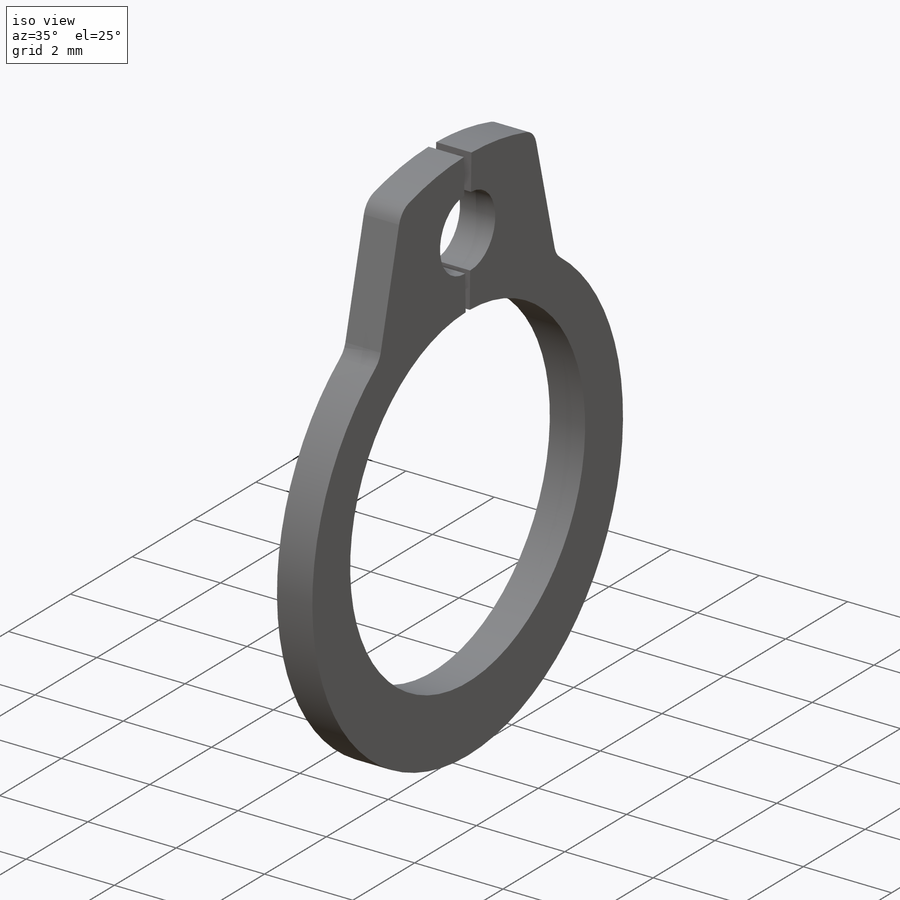
[diagram: iso view]
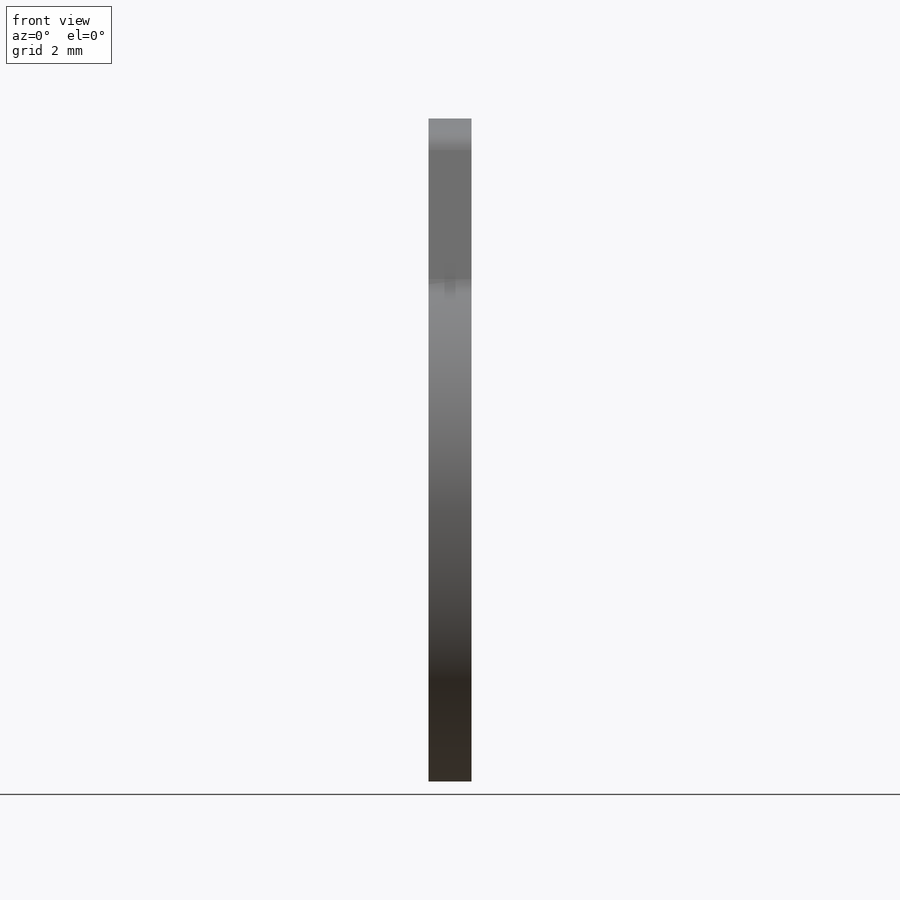
[diagram: front view]
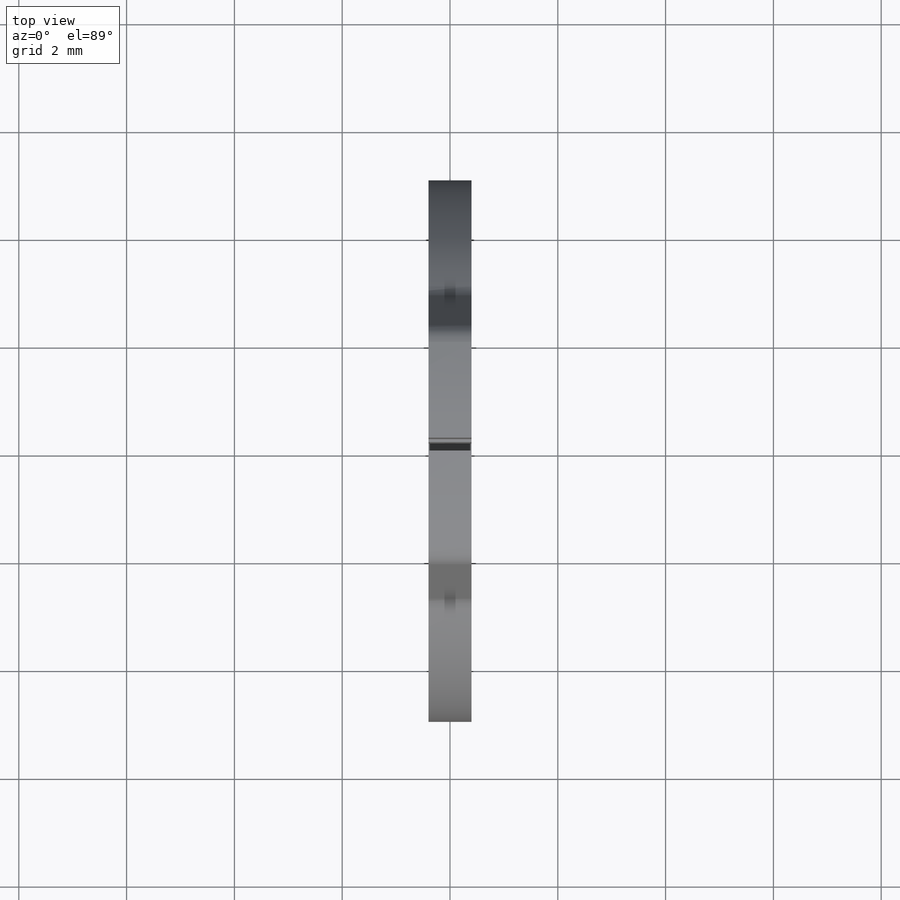
[diagram: top view]
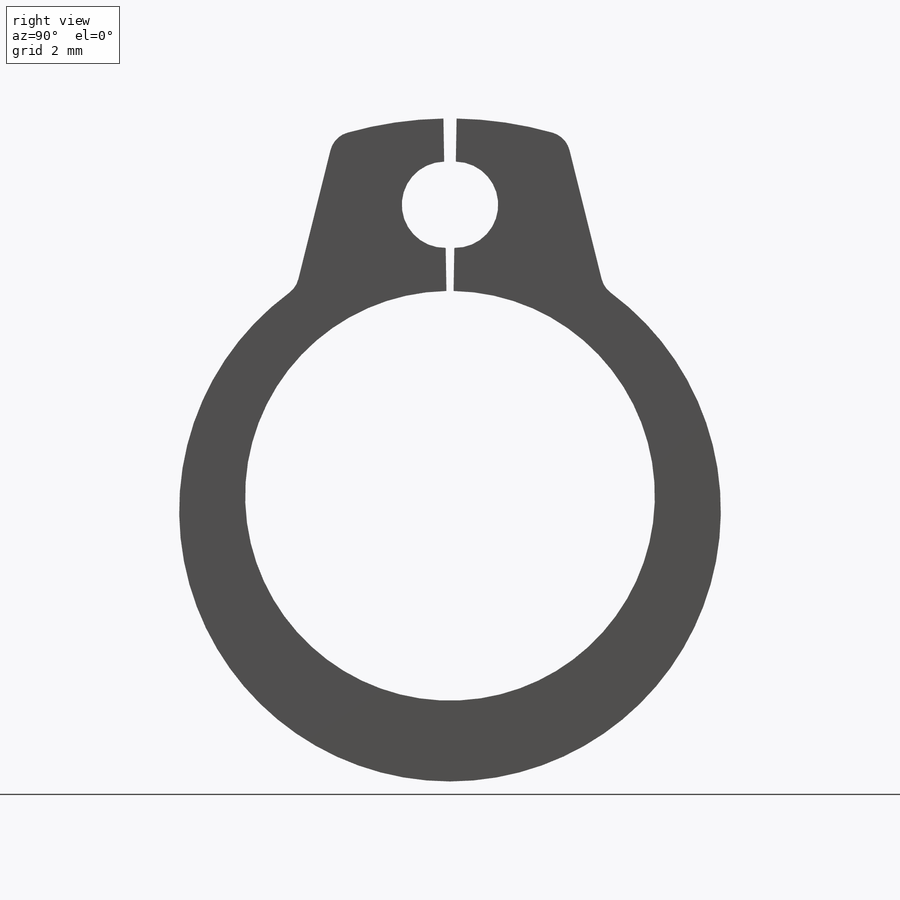
[diagram: right view]
SOLIDWORKS PART (.sldprt)
format: sldprt  version: not decoded by parser v0  size: 273,408 bytes
history: native  units: mm
features: sketch x2, material x1, extrude x1, fillet x1, revolve x1 (+11 scaffold rows collapsed)
feature tree (17):
  scaffold x11  (default folders/planes/origin — collapsed)
  material  "Cast Carbon Steel"
  sketch  "Sketch1"  dims[c1.A=7.6mm c1.L=65.659mm c2.L=18.669mm c2.Hole=2.0mm c3.L=65.659mm c3.D2=~0.773628mm c3.Smin=1.0mm c3.Smax=1.5mm c3.H=3.048mm c3.D1=~8.028579mm c4.D1=60.0deg c5.D1=~14.734659mm c6.D1=60.0deg c7.D1=~12.418379mm c8.D1=60.0deg c9.D1=~7.967052mm c10.D1=~5.305922deg c11.D1=~7.95677mm c12.D1=~7.875802deg c13.D1=~14.213573mm c14.D1=65.0deg c15.D1=~14.805637mm c16.D1=~86.929987deg c17.D1=4.064mm c18.D1=45.0deg c19.D1=~14.706012mm c20.D1=75.0deg c20.D2=23.368mm c20.Angle=1.0deg c20.H=3.2mm c21.D2=1.6mm]
  extrude  "Extrude1"  Depth=0.8mm
  fillet  "Fillet1"  Radius=0.45mm
  sketch  "Sketch2"  dims[c1.Dg=7.6mm c1.Ds=8.0mm c1.D1=~1.932956mm c2.D1=45.0deg c2.W=0.9mm c2.D2=9.0mm c2.D3=2.25mm c3.D1=~0.520171mm c4.D1=45.0deg]
  revolve  "Revolve1"  Angle=360deg
decode coverage: 5 of 5 modeling features carry decoded parameters
note: ~ marks probable driven/reference dimensions
note: suppression state not decoded; provenance and decode notes live in map.json
